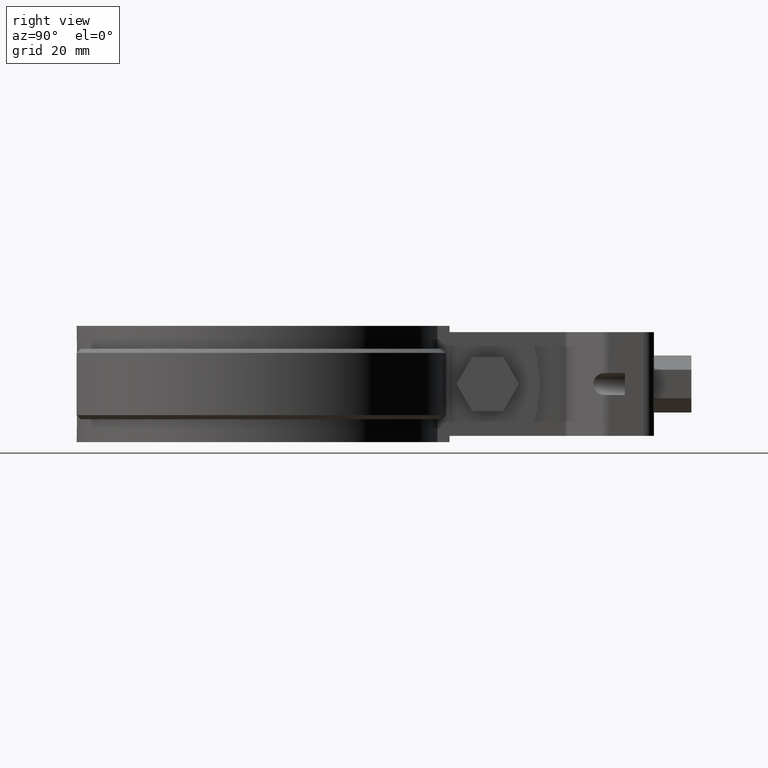
[diagram: clean part render]
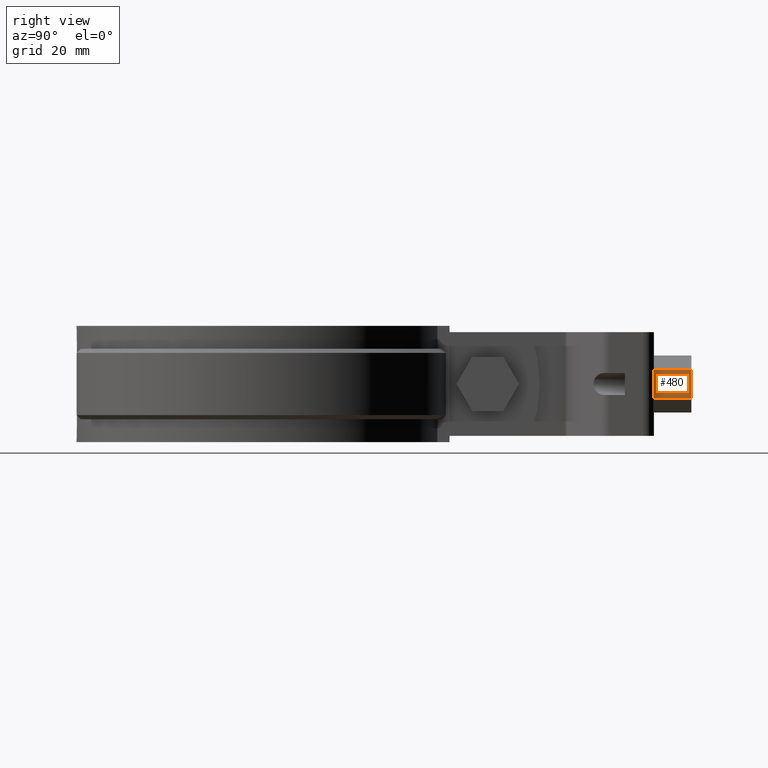
[diagram: same view with one face highlighted and labeled with its STEP entity id]
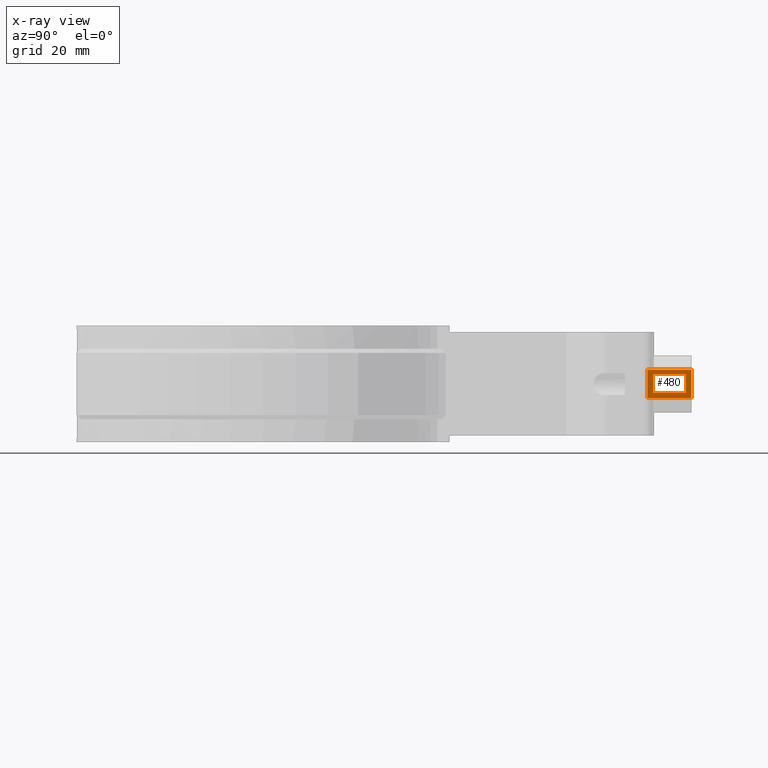
[diagram: x-ray of the same camera — body ghosted, the highlighted face saturated]
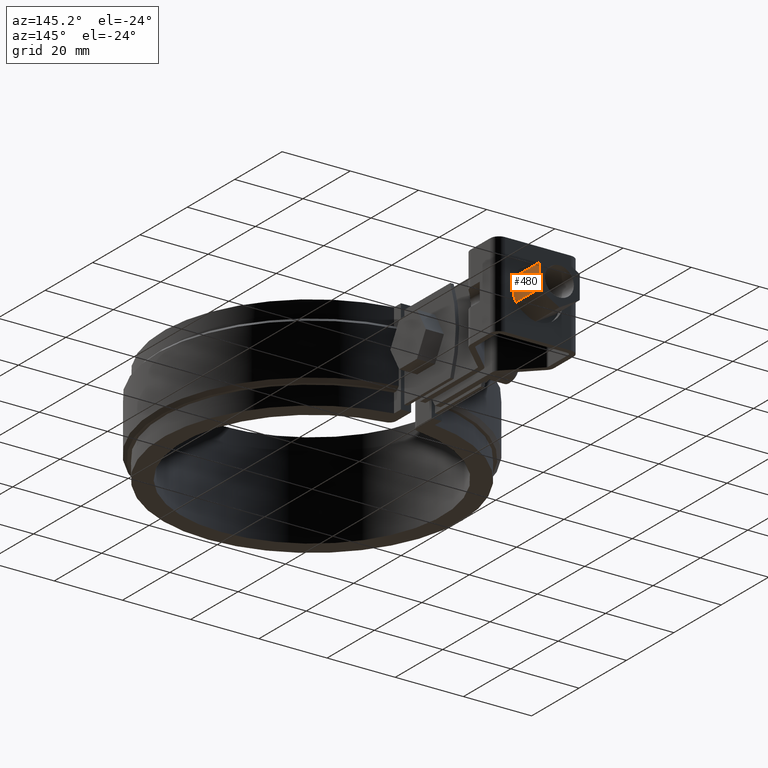
[diagram: same view with one face highlighted and labeled with its STEP entity id]
A machine part, right view. The second image highlights one B-rep face of the part: STEP entity #480.
The next image is the same camera in x-ray: the body ghosted, the highlighted face saturated — about 0% of this face is hidden behind the body in this view.
A second angle (auxiliary view) of the same face is appended — the face is thin or edge-on in the first view.
In plain terms, the highlighted planar face has unit normal (-1, 0, -0).
Its self-contained STEP definition (entity closure, byte-faithful):
#480 = ADVANCED_FACE( '', ( #877 ), #878, .F. );
#877 = FACE_OUTER_BOUND( '', #1865, .T. );
#878 = PLANE( '', #1866 );
#1865 = EDGE_LOOP( '', ( #3937, #3938, #3939, #3940 ) );
#1866 = AXIS2_PLACEMENT_3D( '', #3941, #3942, #3943 );
#3937 = ORIENTED_EDGE( '', *, *, #4738, .T. );
#3938 = ORIENTED_EDGE( '', *, *, #4739, .F. );
#3939 = ORIENTED_EDGE( '', *, *, #4740, .F. );
#3940 = ORIENTED_EDGE( '', *, *, #4741, .T. );
#3941 = CARTESIAN_POINT( '', ( 5.95000000000316, 104.395103745739, 3.43523410168269 ) );
#3942 = DIRECTION( '', ( -1.00000000000000, 2.75928290874408E-015, -3.08521000286855E-014 ) );
#3943 = DIRECTION( '', ( -3.08521000286856E-014, -2.84772205816503E-014, 1.00000000000000 ) );
#4738 = EDGE_CURVE( '', #5627, #5628, #5629, .T. );
#4739 = EDGE_CURVE( '', #5630, #5628, #5631, .T. );
#4740 = EDGE_CURVE( '', #5632, #5630, #5633, .T. );
#4741 = EDGE_CURVE( '', #5632, #5627, #5634, .T. );
#5627 = VERTEX_POINT( '', #8535 );
#5628 = VERTEX_POINT( '', #8536 );
#5629 = LINE( '', #8537, #8538 );
#5630 = VERTEX_POINT( '', #8539 );
#5631 = LINE( '', #8540, #8541 );
#5632 = VERTEX_POINT( '', #8542 );
#5633 = LINE( '', #8543, #8544 );
#5634 = LINE( '', #8545, #8546 );
#8535 = CARTESIAN_POINT( '', ( 5.95000000000313, 93.7951037457394, 3.43523410168238 ) );
#8536 = CARTESIAN_POINT( '', ( 5.95000000000334, 93.7951037457395, -3.43523410167418 ) );
#8537 = CARTESIAN_POINT( '', ( 5.95000000000313, 93.7951037457394, 3.43523410168238 ) );
#8538 = VECTOR( '', #9459, 1000.00000000000 );
#8539 = CARTESIAN_POINT( '', ( 5.95000000000337, 104.395103745740, -3.43523410167387 ) );
#8540 = CARTESIAN_POINT( '', ( 5.95000000000337, 104.395103745740, -3.43523410167387 ) );
#8541 = VECTOR( '', #9460, 1000.00000000000 );
#8542 = CARTESIAN_POINT( '', ( 5.95000000000316, 104.395103745739, 3.43523410168269 ) );
#8543 = CARTESIAN_POINT( '', ( 5.95000000000316, 104.395103745739, 3.43523410168269 ) );
#8544 = VECTOR( '', #9461, 1000.00000000000 );
#8545 = CARTESIAN_POINT( '', ( 5.95000000000316, 104.395103745739, 3.43523410168269 ) );
#8546 = VECTOR( '', #9462, 1000.00000000000 );
#9459 = DIRECTION( '', ( 3.09076111799169E-014, 2.84772205816503E-014, -1.00000000000000 ) );
#9460 = DIRECTION( '', ( -2.75928290874320E-015, -1.00000000000000, -2.84772205816504E-014 ) );
#9461 = DIRECTION( '', ( 3.09076111799169E-014, 2.84772205816503E-014, -1.00000000000000 ) );
#9462 = DIRECTION( '', ( -2.75928290874320E-015, -1.00000000000000, -2.84772205816504E-014 ) );